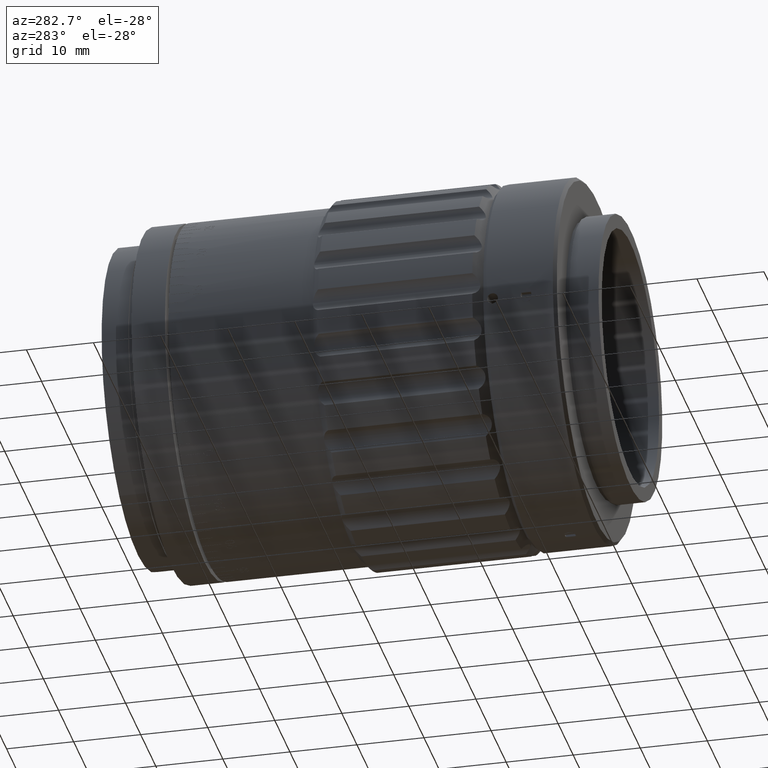
[diagram: clean part render]
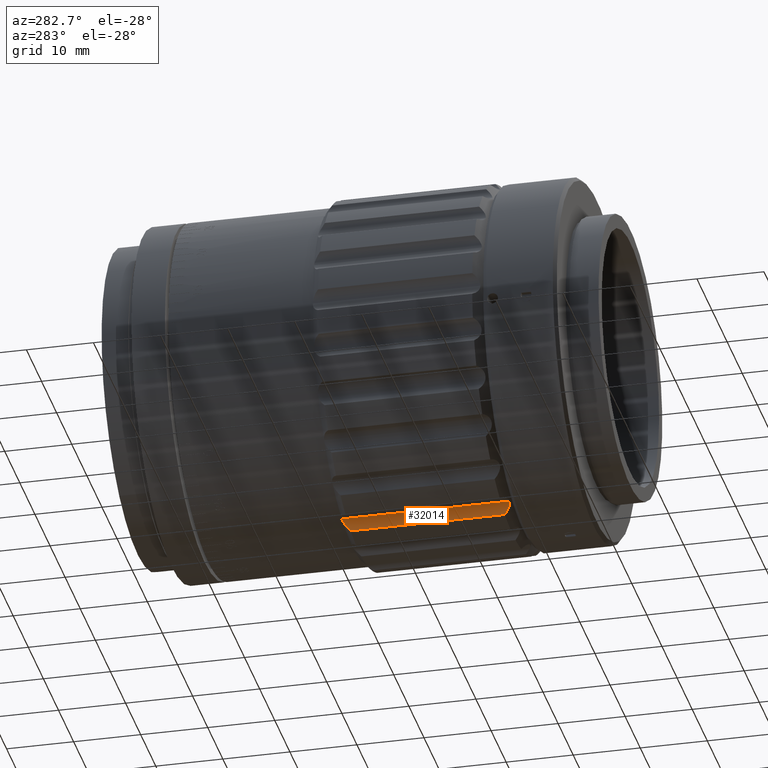
[diagram: same view with one face highlighted and labeled with its STEP entity id]
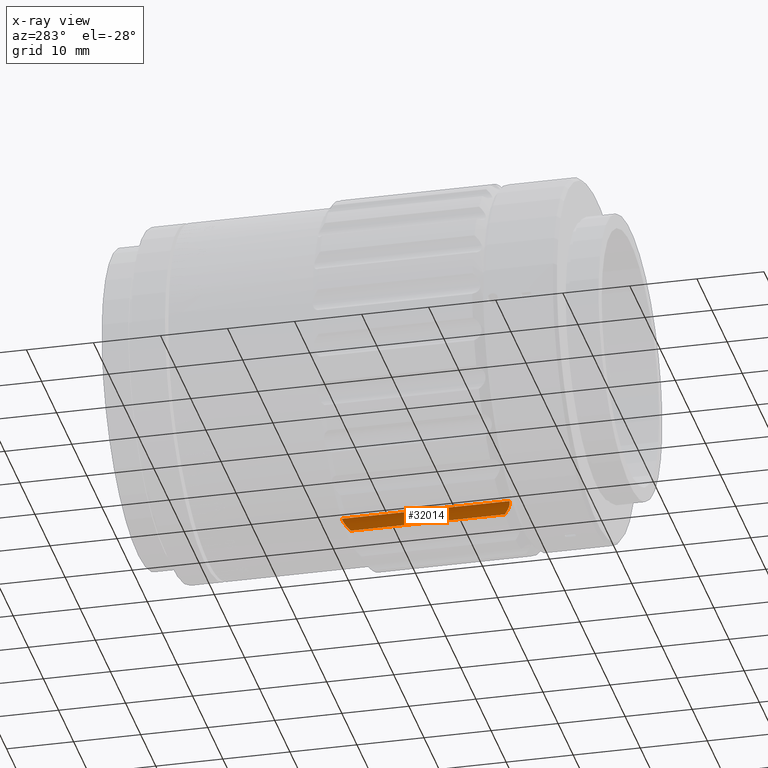
[diagram: x-ray of the same camera — body ghosted, the highlighted face saturated]
A machine part, auxiliary view. The second image highlights one B-rep face of the part: STEP entity #32014.
The next image is the same camera in x-ray: the body ghosted, the highlighted face saturated — about 0% of this face is hidden behind the body in this view.
In plain terms, the highlighted cylindrical surface (edge-blend (fillet) strip) has radius 2 mm, axis along (0, -1, 0).
Its self-contained STEP definition (entity closure, byte-faithful):
#786 = CARTESIAN_POINT ( 'NONE',  ( 22.49654680344650600, -3.734194245562727100, 14.50958583724924400 ) ) ;
#7718 = VERTEX_POINT ( 'NONE', #49934 ) ;
#7809 = CARTESIAN_POINT ( 'NONE',  ( 22.47063614641556500, -3.625167664365869700, 14.34841600653602700 ) ) ;
#7933 = CARTESIAN_POINT ( 'NONE',  ( 22.48436378671781500, -28.06476916104585900, 13.83508696474267600 ) ) ;
#8627 = ORIENTED_EDGE ( 'NONE', *, *, #73948, .T. ) ;
#13025 = VECTOR ( 'NONE', #74456, 1000.000000000000000 ) ;
#14234 = CARTESIAN_POINT ( 'NONE',  ( 22.46365720843551000, -3.484700486296731000, 14.09630680224512900 ) ) ;
#14633 = CARTESIAN_POINT ( 'NONE',  ( 22.68503596040238800, -28.21457821189758200, 13.20836514505613800 ) ) ;
#14936 = CARTESIAN_POINT ( 'NONE',  ( 22.57841341308863300, -27.46488145372640900, 14.80571327722609400 ) ) ;
#15515 = EDGE_LOOP ( 'NONE', ( #58874, #8627, #63026, #57474 ) ) ;
#20500 = CARTESIAN_POINT ( 'NONE',  ( 22.54319296394705000, -28.15530689563527400, 13.56429122097109500 ) ) ;
#24159 = B_SPLINE_CURVE_WITH_KNOTS ( 'NONE', 3,
 ( #54264, #47266, #14936, #67146, #73835, #47834, #53702, #7933, #81101, #20500, #27188, #74112, #14633, #60979 ),
 .UNSPECIFIED., .F., .F.,
 ( 4, 2, 2, 2, 2, 2, 4 ),
 ( 2.979895395317101100E-007, 0.0005735843058146297300, 0.001146870622089727700, 0.001433513780227274300, 0.001720156938364820800, 0.002006800096502367300, 0.002293443254639913800 ),
 .UNSPECIFIED. ) ;
#26127 = AXIS2_PLACEMENT_3D ( 'NONE', #45959, #79806, #66987 ) ;
#27188 = CARTESIAN_POINT ( 'NONE',  ( 22.57145315575235100, -28.17713089429708600, 13.47473048354761200 ) ) ;
#27515 = CARTESIAN_POINT ( 'NONE',  ( 22.70306361842735800, -15.71457821189758900, 15.07094563514977100 ) ) ;
#32014 = ADVANCED_FACE ( 'NONE', ( #62407 ), #80150, .F. ) ;
#36190 = EDGE_CURVE ( 'NONE', #55193, #7718, #57838, .T. ) ;
#37075 = B_SPLINE_CURVE_WITH_KNOTS ( 'NONE', 3,
 ( #78974, #65288, #67595, #79842, #47145, #40710, #14234, #7809, #786, #60544, #47429, #53587 ),
 .UNSPECIFIED., .F., .F.,
 ( 4, 2, 2, 2, 2, 4 ),
 ( 0.002293443254639928100, 0.002866010891116036000, 0.003152294709354093600, 0.003438578527592151700, 0.004011146164068267800, 0.004583713800544383100 ),
 .UNSPECIFIED. ) ;
#37385 = VERTEX_POINT ( 'NONE', #76593 ) ;
#40710 = CARTESIAN_POINT ( 'NONE',  ( 22.46654070602512500, -3.441570337347435800, 14.01042454763615000 ) ) ;
#40801 = LINE ( 'NONE', #62643, #72147 ) ;
#45959 = CARTESIAN_POINT ( 'NONE',  ( 24.46521765691028700, -2.714578211897591900, 14.12500000000032200 ) ) ;
#47145 = CARTESIAN_POINT ( 'NONE',  ( 22.48448051987021000, -3.364064236255758000, 13.83428109412322900 ) ) ;
#47266 = CARTESIAN_POINT ( 'NONE',  ( 22.63423652695927800, -27.34283140253415200, 14.94273114514015800 ) ) ;
#47429 = CARTESIAN_POINT ( 'NONE',  ( 22.63425073669295500, -4.086351499841624600, 14.94275761573070600 ) ) ;
#47834 = CARTESIAN_POINT ( 'NONE',  ( 22.46362513803456900, -27.94395996729930300, 14.09729258263583200 ) ) ;
#49611 = EDGE_CURVE ( 'NONE', #7718, #37385, #24159, .T. ) ;
#49814 = DIRECTION ( 'NONE',  ( -0.0000000000000000000, -1.000000000000000000, 0.0000000000000000000 ) ) ;
#49934 = CARTESIAN_POINT ( 'NONE',  ( 22.70306361842735800, -27.21457821189765600, 15.07094563514977500 ) ) ;
#53587 = CARTESIAN_POINT ( 'NONE',  ( 22.70306361842736100, -4.214578211897617200, 15.07094563514977100 ) ) ;
#53702 = CARTESIAN_POINT ( 'NONE',  ( 22.46649913771761900, -27.98722358619830100, 14.01117599504053700 ) ) ;
#54134 = CARTESIAN_POINT ( 'NONE',  ( 22.73316684934141900, -3.214578211897678500, 13.12500000000030200 ) ) ;
#54264 = CARTESIAN_POINT ( 'NONE',  ( 22.70306361842735800, -27.21457821189765600, 15.07094563514977500 ) ) ;
#55193 = VERTEX_POINT ( 'NONE', #70917 ) ;
#57474 = ORIENTED_EDGE ( 'NONE', *, *, #49611, .T. ) ;
#57596 = VERTEX_POINT ( 'NONE', #54134 ) ;
#57838 = LINE ( 'NONE', #27515, #13025 ) ;
#58874 = ORIENTED_EDGE ( 'NONE', *, *, #61661, .F. ) ;
#60544 = CARTESIAN_POINT ( 'NONE',  ( 22.57831207111297200, -3.964103246584268700, 14.80555749630549800 ) ) ;
#60979 = CARTESIAN_POINT ( 'NONE',  ( 22.73316684934141900, -28.21457821189758900, 13.12500000000030000 ) ) ;
#61661 = EDGE_CURVE ( 'NONE', #57596, #37385, #40801, .T. ) ;
#62407 = FACE_OUTER_BOUND ( 'NONE', #15515, .T. ) ;
#62643 = CARTESIAN_POINT ( 'NONE',  ( 22.73316684934141900, -2.714578211897591900, 13.12500000000030000 ) ) ;
#63026 = ORIENTED_EDGE ( 'NONE', *, *, #36190, .T. ) ;
#65288 = CARTESIAN_POINT ( 'NONE',  ( 22.63702574658365000, -3.214578211897680700, 13.29152127467244800 ) ) ;
#66987 = DIRECTION ( 'NONE',  ( -0.8660254037844328200, 0.0000000000000000000, -0.5000000000000101000 ) ) ;
#67146 = CARTESIAN_POINT ( 'NONE',  ( 22.49683610694307100, -27.69403601927519500, 14.51084309510957800 ) ) ;
#67595 = CARTESIAN_POINT ( 'NONE',  ( 22.56510966258549500, -3.245789140871166500, 13.47401003275894000 ) ) ;
#70917 = CARTESIAN_POINT ( 'NONE',  ( 22.70306361842736100, -4.214578211897617200, 15.07094563514977100 ) ) ;
#72147 = VECTOR ( 'NONE', #49814, 1000.000000000000000 ) ;
#73835 = CARTESIAN_POINT ( 'NONE',  ( 22.47081936244052600, -27.80261297679607000, 14.35069158910920200 ) ) ;
#73948 = EDGE_CURVE ( 'NONE', #57596, #55193, #37075, .T. ) ;
#74112 = CARTESIAN_POINT ( 'NONE',  ( 22.64234901309461300, -28.20691269605202200, 13.29654098636887800 ) ) ;
#74456 = DIRECTION ( 'NONE',  ( -0.0000000000000000000, -1.000000000000000000, 0.0000000000000000000 ) ) ;
#76593 = CARTESIAN_POINT ( 'NONE',  ( 22.73316684934141900, -28.21457821189758900, 13.12500000000030000 ) ) ;
#78974 = CARTESIAN_POINT ( 'NONE',  ( 22.73316684934141900, -3.214578211897678500, 13.12500000000030200 ) ) ;
#79806 = DIRECTION ( 'NONE',  ( -0.0000000000000000000, -1.000000000000000000, 0.0000000000000000000 ) ) ;
#79842 = CARTESIAN_POINT ( 'NONE',  ( 22.49974652857725500, -3.329652064939129000, 13.74359099961358200 ) ) ;
#80150 = CYLINDRICAL_SURFACE ( 'NONE', #26127, 2.000000000000003100 ) ;
#81101 = CARTESIAN_POINT ( 'NONE',  ( 22.49960830672927200, -28.09926723534072600, 13.74427288286548800 ) ) ;